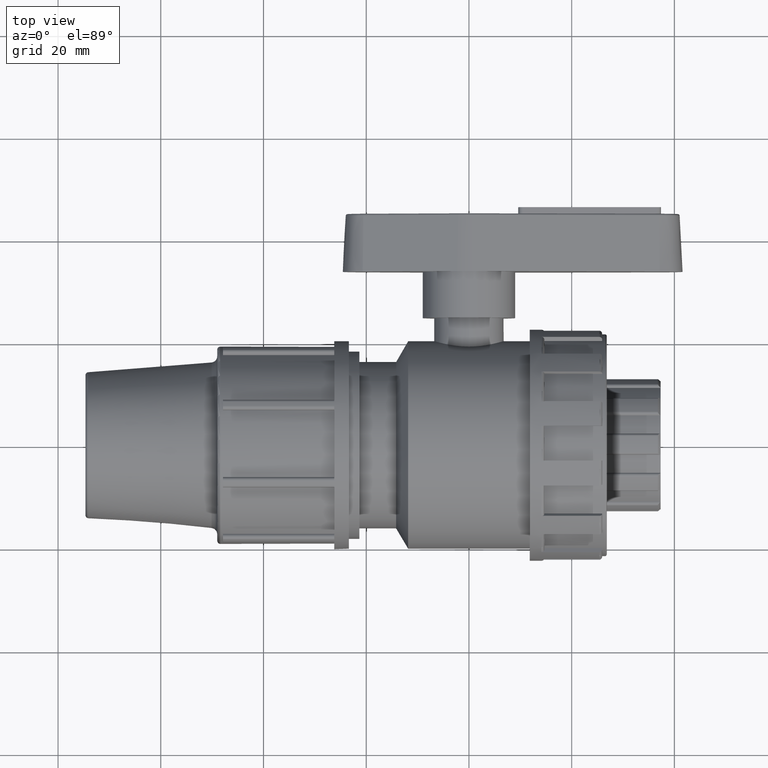
[diagram: clean part render]
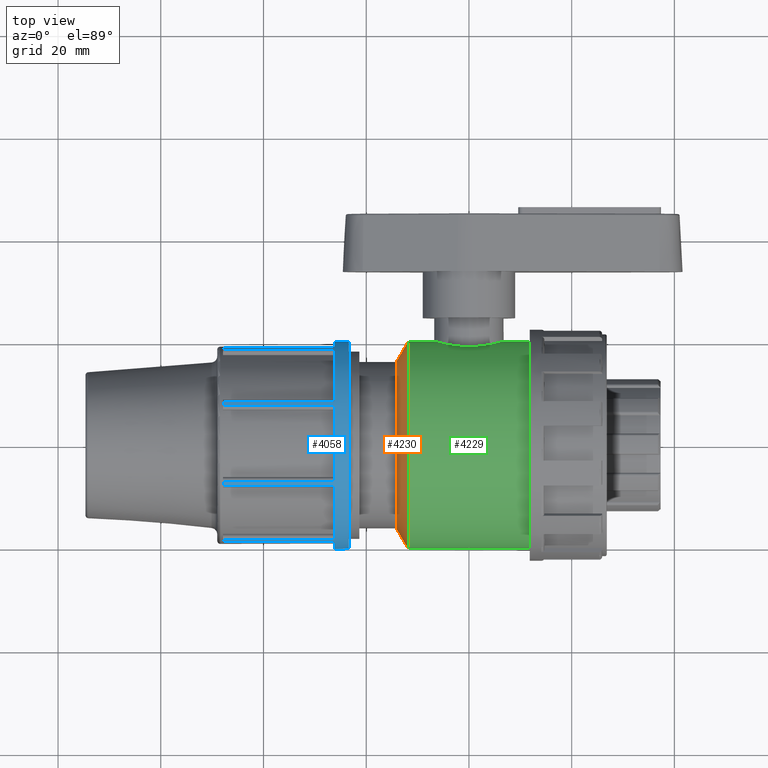
[diagram: same view with three faces highlighted in distinct colors, each labeled with its STEP entity id]
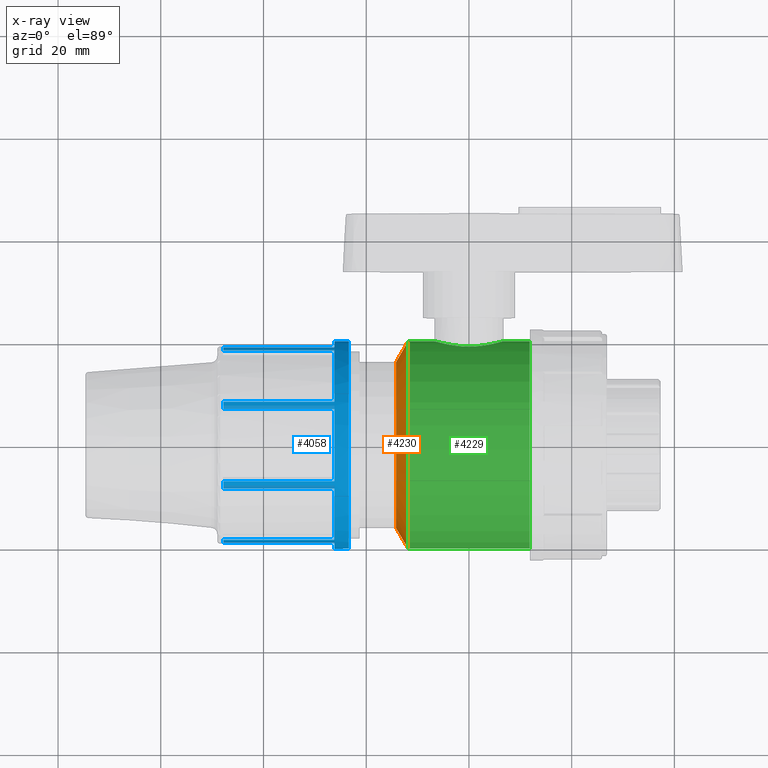
[diagram: x-ray of the same camera — body ghosted, the three highlighted faces saturated]
A machine part, top view with three faces highlighted in distinct colors.
The next image is the same camera in x-ray (body ghosted, the three faces saturated) — at least one of them is partly hidden behind the body in this view.
Their STEP definitions:

[orange] entity #4230 — the highlighted conical surface has half-angle 60 deg.
#31=CONICAL_SURFACE('',#4722,18.225,60.);
#98=FACE_BOUND('',#851,.T.);
#578=FACE_OUTER_BOUND('',#850,.T.);
#850=EDGE_LOOP('',(#3898));
#851=EDGE_LOOP('',(#3899));
#1615=CIRCLE('',#4721,20.25);
#1616=CIRCLE('',#4723,16.2);
#2028=VERTEX_POINT('',#8648);
#2029=VERTEX_POINT('',#8651);
#2655=EDGE_CURVE('',#2028,#2028,#1615,.T.);
#2656=EDGE_CURVE('',#2029,#2029,#1616,.T.);
#3898=ORIENTED_EDGE('',*,*,#2656,.F.);
#3899=ORIENTED_EDGE('',*,*,#2655,.T.);
#4230=ADVANCED_FACE('',(#578,#98),#31,.T.);
#4721=AXIS2_PLACEMENT_3D('',#8649,#5944,#5945);
#4722=AXIS2_PLACEMENT_3D('',#8650,#5946,#5947);
#4723=AXIS2_PLACEMENT_3D('',#8652,#5948,#5949);
#5944=DIRECTION('center_axis',(-1.,-1.09423447351567E-31,0.));
#5945=DIRECTION('ref_axis',(0.,0.,1.));
#5946=DIRECTION('center_axis',(1.,1.09423447351567E-31,0.));
#5947=DIRECTION('ref_axis',(0.,1.,0.));
#5948=DIRECTION('center_axis',(-1.,-1.09423447351567E-31,0.));
#5949=DIRECTION('ref_axis',(0.,0.,1.));
#8648=CARTESIAN_POINT('',(-11.8333333333333,20.25,0.));
#8649=CARTESIAN_POINT('Origin',(-11.8333333333333,-5.37998616145206E-30,
0.));
#8650=CARTESIAN_POINT('Origin',(-13.0024676284423,-5.50791686643983E-30,
0.));
#8651=CARTESIAN_POINT('',(-14.1716019235513,16.2,0.));
#8652=CARTESIAN_POINT('Origin',(-14.1716019235513,-5.6358475714276E-30,
0.));

[blue] entity #4058 — the highlighted cylindrical surface (bore or boss wall) has radius 20.25 mm, axis along (-1, -0, 0).
#75=FACE_BOUND('',#656,.T.);
#406=FACE_OUTER_BOUND('',#655,.T.);
#655=EDGE_LOOP('',(#3001,#3002,#3003,#3004,#3005,#3006,#3007,#3008,#3009,
#3010,#3011,#3012,#3013,#3014,#3015,#3016,#3017,#3018,#3019,#3020,#3021,
#3022,#3023,#3024,#3025,#3026,#3027,#3028,#3029,#3030,#3031,#3032));
#656=EDGE_LOOP('',(#3033));
#870=LINE('',#5988,#1114);
#876=LINE('',#6136,#1120);
#882=LINE('',#6168,#1126);
#886=LINE('',#6271,#1130);
#892=LINE('',#6303,#1136);
#896=LINE('',#6406,#1140);
#902=LINE('',#6438,#1146);
#906=LINE('',#6541,#1150);
#912=LINE('',#6573,#1156);
#916=LINE('',#6676,#1160);
#922=LINE('',#6708,#1166);
#926=LINE('',#6811,#1170);
#932=LINE('',#6843,#1176);
#936=LINE('',#6946,#1180);
#944=LINE('',#7030,#1188);
#945=LINE('',#7033,#1189);
#1114=VECTOR('',#4746,21.6);
#1120=VECTOR('',#4768,21.6);
#1126=VECTOR('',#4786,21.6);
#1130=VECTOR('',#4800,21.6);
#1136=VECTOR('',#4818,21.6);
#1140=VECTOR('',#4832,21.6);
#1146=VECTOR('',#4850,21.6);
#1150=VECTOR('',#4864,21.6000000000001);
#1156=VECTOR('',#4882,21.6);
#1160=VECTOR('',#4896,21.6);
#1166=VECTOR('',#4914,21.6);
#1170=VECTOR('',#4928,21.6);
#1176=VECTOR('',#4946,21.6);
#1180=VECTOR('',#4960,21.6);
#1188=VECTOR('',#5058,21.6);
#1189=VECTOR('',#5061,21.6);
#1401=CIRCLE('',#4321,20.25);
#1403=CIRCLE('',#4324,20.25);
#1405=CIRCLE('',#4327,20.25);
#1407=CIRCLE('',#4330,20.25);
#1409=CIRCLE('',#4333,20.25);
#1411=CIRCLE('',#4336,20.25);
#1413=CIRCLE('',#4339,20.25);
#1418=CIRCLE('',#4347,20.25);
#1419=CIRCLE('',#4349,20.25);
#1420=CIRCLE('',#4351,20.25);
#1421=CIRCLE('',#4353,20.25);
#1422=CIRCLE('',#4355,20.25);
#1423=CIRCLE('',#4357,20.25);
#1424=CIRCLE('',#4359,20.25);
#1425=CIRCLE('',#4361,20.25);
#1426=CIRCLE('',#4363,20.25);
#1427=CIRCLE('',#4364,20.25);
#1625=VERTEX_POINT('',#5985);
#1626=VERTEX_POINT('',#5987);
#1638=VERTEX_POINT('',#6126);
#1640=VERTEX_POINT('',#6134);
#1647=VERTEX_POINT('',#6165);
#1648=VERTEX_POINT('',#6167);
#1654=VERTEX_POINT('',#6261);
#1656=VERTEX_POINT('',#6269);
#1663=VERTEX_POINT('',#6300);
#1664=VERTEX_POINT('',#6302);
#1670=VERTEX_POINT('',#6396);
#1672=VERTEX_POINT('',#6404);
#1679=VERTEX_POINT('',#6435);
#1680=VERTEX_POINT('',#6437);
#1686=VERTEX_POINT('',#6531);
#1688=VERTEX_POINT('',#6539);
#1695=VERTEX_POINT('',#6570);
#1696=VERTEX_POINT('',#6572);
#1702=VERTEX_POINT('',#6666);
#1704=VERTEX_POINT('',#6674);
#1711=VERTEX_POINT('',#6705);
#1712=VERTEX_POINT('',#6707);
#1718=VERTEX_POINT('',#6801);
#1720=VERTEX_POINT('',#6809);
#1727=VERTEX_POINT('',#6840);
#1728=VERTEX_POINT('',#6842);
#1734=VERTEX_POINT('',#6936);
#1736=VERTEX_POINT('',#6944);
#1745=VERTEX_POINT('',#7003);
#1746=VERTEX_POINT('',#7020);
#1747=VERTEX_POINT('',#7029);
#1748=VERTEX_POINT('',#7031);
#1749=VERTEX_POINT('',#7034);
#2038=EDGE_CURVE('',#1625,#1626,#870,.T.);
#2056=EDGE_CURVE('',#1640,#1638,#876,.T.);
#2066=EDGE_CURVE('',#1647,#1648,#882,.T.);
#2078=EDGE_CURVE('',#1656,#1654,#886,.T.);
#2088=EDGE_CURVE('',#1663,#1664,#892,.T.);
#2100=EDGE_CURVE('',#1672,#1670,#896,.T.);
#2110=EDGE_CURVE('',#1679,#1680,#902,.T.);
#2122=EDGE_CURVE('',#1688,#1686,#906,.T.);
#2132=EDGE_CURVE('',#1695,#1696,#912,.T.);
#2144=EDGE_CURVE('',#1704,#1702,#916,.T.);
#2154=EDGE_CURVE('',#1711,#1712,#922,.T.);
#2166=EDGE_CURVE('',#1720,#1718,#926,.T.);
#2176=EDGE_CURVE('',#1727,#1728,#932,.T.);
#2188=EDGE_CURVE('',#1736,#1734,#936,.T.);
#2194=EDGE_CURVE('',#1626,#1640,#1401,.T.);
#2196=EDGE_CURVE('',#1648,#1656,#1403,.T.);
#2198=EDGE_CURVE('',#1664,#1672,#1405,.T.);
#2200=EDGE_CURVE('',#1680,#1688,#1407,.T.);
#2202=EDGE_CURVE('',#1696,#1704,#1409,.T.);
#2204=EDGE_CURVE('',#1712,#1720,#1411,.T.);
#2206=EDGE_CURVE('',#1728,#1736,#1413,.T.);
#2215=EDGE_CURVE('',#1734,#1745,#1418,.T.);
#2217=EDGE_CURVE('',#1718,#1727,#1419,.T.);
#2218=EDGE_CURVE('',#1702,#1711,#1420,.T.);
#2219=EDGE_CURVE('',#1686,#1695,#1421,.T.);
#2220=EDGE_CURVE('',#1670,#1679,#1422,.T.);
#2221=EDGE_CURVE('',#1654,#1663,#1423,.T.);
#2223=EDGE_CURVE('',#1746,#1625,#1424,.T.);
#2224=EDGE_CURVE('',#1638,#1647,#1425,.T.);
#2225=EDGE_CURVE('',#1747,#1746,#944,.T.);
#2226=EDGE_CURVE('',#1748,#1747,#1426,.T.);
#2227=EDGE_CURVE('',#1745,#1748,#945,.T.);
#2228=EDGE_CURVE('',#1749,#1749,#1427,.T.);
#3001=ORIENTED_EDGE('',*,*,#2038,.F.);
#3002=ORIENTED_EDGE('',*,*,#2223,.F.);
#3003=ORIENTED_EDGE('',*,*,#2225,.F.);
#3004=ORIENTED_EDGE('',*,*,#2226,.F.);
#3005=ORIENTED_EDGE('',*,*,#2227,.F.);
#3006=ORIENTED_EDGE('',*,*,#2215,.F.);
#3007=ORIENTED_EDGE('',*,*,#2188,.F.);
#3008=ORIENTED_EDGE('',*,*,#2206,.F.);
#3009=ORIENTED_EDGE('',*,*,#2176,.F.);
#3010=ORIENTED_EDGE('',*,*,#2217,.F.);
#3011=ORIENTED_EDGE('',*,*,#2166,.F.);
#3012=ORIENTED_EDGE('',*,*,#2204,.F.);
#3013=ORIENTED_EDGE('',*,*,#2154,.F.);
#3014=ORIENTED_EDGE('',*,*,#2218,.F.);
#3015=ORIENTED_EDGE('',*,*,#2144,.F.);
#3016=ORIENTED_EDGE('',*,*,#2202,.F.);
#3017=ORIENTED_EDGE('',*,*,#2132,.F.);
#3018=ORIENTED_EDGE('',*,*,#2219,.F.);
#3019=ORIENTED_EDGE('',*,*,#2122,.F.);
#3020=ORIENTED_EDGE('',*,*,#2200,.F.);
#3021=ORIENTED_EDGE('',*,*,#2110,.F.);
#3022=ORIENTED_EDGE('',*,*,#2220,.F.);
#3023=ORIENTED_EDGE('',*,*,#2100,.F.);
#3024=ORIENTED_EDGE('',*,*,#2198,.F.);
#3025=ORIENTED_EDGE('',*,*,#2088,.F.);
#3026=ORIENTED_EDGE('',*,*,#2221,.F.);
#3027=ORIENTED_EDGE('',*,*,#2078,.F.);
#3028=ORIENTED_EDGE('',*,*,#2196,.F.);
#3029=ORIENTED_EDGE('',*,*,#2066,.F.);
#3030=ORIENTED_EDGE('',*,*,#2224,.F.);
#3031=ORIENTED_EDGE('',*,*,#2056,.F.);
#3032=ORIENTED_EDGE('',*,*,#2194,.F.);
#3033=ORIENTED_EDGE('',*,*,#2228,.T.);
#3933=CYLINDRICAL_SURFACE('',#4362,20.25);
#4058=ADVANCED_FACE('',(#406,#75),#3933,.T.);
#4321=AXIS2_PLACEMENT_3D('',#6956,#4971,#4972);
#4324=AXIS2_PLACEMENT_3D('',#6959,#4977,#4978);
#4327=AXIS2_PLACEMENT_3D('',#6962,#4983,#4984);
#4330=AXIS2_PLACEMENT_3D('',#6965,#4989,#4990);
#4333=AXIS2_PLACEMENT_3D('',#6968,#4995,#4996);
#4336=AXIS2_PLACEMENT_3D('',#6971,#5001,#5002);
#4339=AXIS2_PLACEMENT_3D('',#6974,#5007,#5008);
#4347=AXIS2_PLACEMENT_3D('',#7004,#5026,#5027);
#4349=AXIS2_PLACEMENT_3D('',#7010,#5030,#5031);
#4351=AXIS2_PLACEMENT_3D('',#7012,#5034,#5035);
#4353=AXIS2_PLACEMENT_3D('',#7014,#5038,#5039);
#4355=AXIS2_PLACEMENT_3D('',#7016,#5042,#5043);
#4357=AXIS2_PLACEMENT_3D('',#7018,#5046,#5047);
#4359=AXIS2_PLACEMENT_3D('',#7025,#5050,#5051);
#4361=AXIS2_PLACEMENT_3D('',#7027,#5054,#5055);
#4362=AXIS2_PLACEMENT_3D('',#7028,#5056,#5057);
#4363=AXIS2_PLACEMENT_3D('',#7032,#5059,#5060);
#4364=AXIS2_PLACEMENT_3D('',#7035,#5062,#5063);
#4746=DIRECTION('',(1.,1.09423447351567E-31,0.));
#4768=DIRECTION('',(-1.,-1.09423447351567E-31,0.));
#4786=DIRECTION('',(1.,1.09423447351567E-31,0.));
#4800=DIRECTION('',(-1.,-1.09423447351567E-31,0.));
#4818=DIRECTION('',(1.,1.09423447351567E-31,0.));
#4832=DIRECTION('',(-1.,-1.09423447351567E-31,0.));
#4850=DIRECTION('',(1.,1.09423447351567E-31,0.));
#4864=DIRECTION('',(-1.,-1.09423447351567E-31,0.));
#4882=DIRECTION('',(1.,1.09423447351567E-31,0.));
#4896=DIRECTION('',(-1.,-1.09423447351567E-31,0.));
#4914=DIRECTION('',(1.,1.09423447351567E-31,0.));
#4928=DIRECTION('',(-1.,-1.09423447351567E-31,0.));
#4946=DIRECTION('',(1.,1.09423447351567E-31,0.));
#4960=DIRECTION('',(-1.,-1.09423447351567E-31,0.));
#4971=DIRECTION('center_axis',(-1.,-7.73740616431025E-32,7.73740616431025E-32));
#4972=DIRECTION('ref_axis',(0.,1.,0.));
#4977=DIRECTION('center_axis',(-1.,2.18952885050753E-47,1.09423447351567E-31));
#4978=DIRECTION('ref_axis',(0.,1.,0.));
#4983=DIRECTION('center_axis',(-1.,7.73740616431025E-32,7.73740616431025E-32));
#4984=DIRECTION('ref_axis',(0.,1.,0.));
#4989=DIRECTION('center_axis',(-1.,1.09423447351567E-31,-2.18952885050753E-47));
#4990=DIRECTION('ref_axis',(0.,1.,0.));
#4995=DIRECTION('center_axis',(-1.,7.73740616431025E-32,-7.73740616431025E-32));
#4996=DIRECTION('ref_axis',(0.,1.,0.));
#5001=DIRECTION('center_axis',(-1.,0.,-1.09423447351567E-31));
#5002=DIRECTION('ref_axis',(0.,1.,0.));
#5007=DIRECTION('center_axis',(-1.,-7.73740616431025E-32,-7.73740616431025E-32));
#5008=DIRECTION('ref_axis',(0.,1.,0.));
#5026=DIRECTION('center_axis',(-1.,-1.09423447351567E-31,0.));
#5027=DIRECTION('ref_axis',(0.,-1.,-1.83697019872103E-16));
#5030=DIRECTION('center_axis',(-1.,-1.09423447351567E-31,0.));
#5031=DIRECTION('ref_axis',(0.,-1.,-1.83697019872103E-16));
#5034=DIRECTION('center_axis',(-1.,-1.09423447351567E-31,0.));
#5035=DIRECTION('ref_axis',(0.,-1.,-1.83697019872103E-16));
#5038=DIRECTION('center_axis',(-1.,-1.09423447351567E-31,0.));
#5039=DIRECTION('ref_axis',(0.,-1.,-1.83697019872103E-16));
#5042=DIRECTION('center_axis',(-1.,-1.09423447351567E-31,0.));
#5043=DIRECTION('ref_axis',(0.,-1.,-1.83697019872103E-16));
#5046=DIRECTION('center_axis',(-1.,-1.09423447351567E-31,0.));
#5047=DIRECTION('ref_axis',(0.,-1.,-1.83697019872103E-16));
#5050=DIRECTION('center_axis',(-1.,-1.09423447351567E-31,0.));
#5051=DIRECTION('ref_axis',(0.,-1.,-1.83697019872103E-16));
#5054=DIRECTION('center_axis',(-1.,-1.09423447351567E-31,0.));
#5055=DIRECTION('ref_axis',(0.,-1.,-1.83697019872103E-16));
#5056=DIRECTION('center_axis',(-1.,-1.09423447351567E-31,0.));
#5057=DIRECTION('ref_axis',(0.,1.,0.));
#5058=DIRECTION('',(-1.,-1.09423447351567E-31,0.));
#5059=DIRECTION('center_axis',(-1.,-1.09423447351567E-31,-3.28789518674083E-49));
#5060=DIRECTION('ref_axis',(0.,1.,0.));
#5061=DIRECTION('',(1.,1.09423447351567E-31,0.));
#5062=DIRECTION('center_axis',(-1.,-1.09423447351567E-31,0.));
#5063=DIRECTION('ref_axis',(0.,0.,1.));
#5985=CARTESIAN_POINT('',(-47.8166666666667,18.53643441494,-8.15249036679141));
#5987=CARTESIAN_POINT('',(-26.2166666666667,18.53643441494,-8.15249036679141));
#5988=CARTESIAN_POINT('',(-36.1916666666667,18.53643441494,-8.15249036679141));
#6126=CARTESIAN_POINT('',(-47.8166666666667,8.1524903667898,-18.5364344149407));
#6134=CARTESIAN_POINT('',(-26.2166666666667,8.15249036678981,-18.5364344149407));
#6136=CARTESIAN_POINT('',(-36.1916666666667,8.15249036678981,-18.5364344149407));
#6165=CARTESIAN_POINT('',(-47.8166666666667,7.34255725190758,-18.87191969574));
#6167=CARTESIAN_POINT('',(-26.2166666666667,7.34255725190758,-18.87191969574));
#6168=CARTESIAN_POINT('',(-36.1916666666667,7.34255725190758,-18.87191969574));
#6261=CARTESIAN_POINT('',(-47.8166666666667,-7.34255725190922,-18.8719196957394));
#6269=CARTESIAN_POINT('',(-26.2166666666667,-7.34255725190921,-18.8719196957394));
#6271=CARTESIAN_POINT('',(-36.1916666666667,-7.34255725190921,-18.8719196957394));
#6300=CARTESIAN_POINT('',(-47.8166666666667,-8.15249036679141,-18.53643441494));
#6302=CARTESIAN_POINT('',(-26.2166666666667,-8.15249036679141,-18.53643441494));
#6303=CARTESIAN_POINT('',(-36.1916666666667,-8.15249036679141,-18.53643441494));
#6396=CARTESIAN_POINT('',(-47.8166666666667,-18.5364344149407,-8.1524903667898));
#6404=CARTESIAN_POINT('',(-26.2166666666667,-18.5364344149407,-8.15249036678981));
#6406=CARTESIAN_POINT('',(-36.1916666666667,-18.5364344149407,-8.15249036678981));
#6435=CARTESIAN_POINT('',(-47.8166666666667,-18.87191969574,-7.34255725190758));
#6437=CARTESIAN_POINT('',(-26.2166666666667,-18.87191969574,-7.34255725190758));
#6438=CARTESIAN_POINT('',(-36.1916666666667,-18.87191969574,-7.34255725190758));
#6531=CARTESIAN_POINT('',(-47.8166666666667,-18.8719196957394,7.34255725190921));
#6539=CARTESIAN_POINT('',(-26.2166666666667,-18.8719196957394,7.34255725190922));
#6541=CARTESIAN_POINT('',(-36.1916666666667,-18.8719196957394,7.34255725190922));
#6570=CARTESIAN_POINT('',(-47.8166666666667,-18.53643441494,8.1524903667914));
#6572=CARTESIAN_POINT('',(-26.2166666666667,-18.53643441494,8.1524903667914));
#6573=CARTESIAN_POINT('',(-36.1916666666667,-18.53643441494,8.1524903667914));
#6666=CARTESIAN_POINT('',(-47.8166666666667,-8.1524903667898,18.5364344149407));
#6674=CARTESIAN_POINT('',(-26.2166666666667,-8.1524903667898,18.5364344149407));
#6676=CARTESIAN_POINT('',(-36.1916666666667,-8.1524903667898,18.5364344149407));
#6705=CARTESIAN_POINT('',(-47.8166666666667,-7.34255725190758,18.87191969574));
#6707=CARTESIAN_POINT('',(-26.2166666666667,-7.34255725190758,18.87191969574));
#6708=CARTESIAN_POINT('',(-36.1916666666667,-7.34255725190758,18.87191969574));
#6801=CARTESIAN_POINT('',(-47.8166666666667,7.34255725190921,18.8719196957394));
#6809=CARTESIAN_POINT('',(-26.2166666666667,7.34255725190921,18.8719196957394));
#6811=CARTESIAN_POINT('',(-36.1916666666667,7.34255725190921,18.8719196957394));
#6840=CARTESIAN_POINT('',(-47.8166666666667,8.15249036679141,18.53643441494));
#6842=CARTESIAN_POINT('',(-26.2166666666667,8.15249036679141,18.53643441494));
#6843=CARTESIAN_POINT('',(-36.1916666666667,8.15249036679141,18.53643441494));
#6936=CARTESIAN_POINT('',(-47.8166666666667,18.5364344149407,8.1524903667898));
#6944=CARTESIAN_POINT('',(-26.2166666666667,18.5364344149407,8.15249036678981));
#6946=CARTESIAN_POINT('',(-36.1916666666667,18.5364344149407,8.15249036678981));
#6956=CARTESIAN_POINT('Origin',(-26.2166666666667,-6.95386007919211E-30,
0.));
#6959=CARTESIAN_POINT('Origin',(-26.2166666666667,-6.95386007919211E-30,
0.));
#6962=CARTESIAN_POINT('Origin',(-26.2166666666667,-6.95386007919211E-30,
0.));
#6965=CARTESIAN_POINT('Origin',(-26.2166666666667,-6.95386007919211E-30,
0.));
#6968=CARTESIAN_POINT('Origin',(-26.2166666666667,-6.95386007919211E-30,
0.));
#6971=CARTESIAN_POINT('Origin',(-26.2166666666667,-6.95386007919211E-30,
0.));
#6974=CARTESIAN_POINT('Origin',(-26.2166666666667,-6.95386007919211E-30,
0.));
#7003=CARTESIAN_POINT('',(-47.8166666666667,18.87191969574,7.34255725190758));
#7004=CARTESIAN_POINT('Origin',(-47.8166666666667,-9.31740654198596E-30,
0.));
#7010=CARTESIAN_POINT('Origin',(-47.8166666666667,-9.31740654198596E-30,
0.));
#7012=CARTESIAN_POINT('Origin',(-47.8166666666667,-9.31740654198596E-30,
0.));
#7014=CARTESIAN_POINT('Origin',(-47.8166666666667,-9.31740654198596E-30,
0.));
#7016=CARTESIAN_POINT('Origin',(-47.8166666666667,-9.31740654198596E-30,
0.));
#7018=CARTESIAN_POINT('Origin',(-47.8166666666667,-9.31740654198596E-30,
0.));
#7020=CARTESIAN_POINT('',(-47.8166666666667,18.8719196957394,-7.34255725190921));
#7025=CARTESIAN_POINT('Origin',(-47.8166666666667,-9.31740654198596E-30,
0.));
#7027=CARTESIAN_POINT('Origin',(-47.8166666666667,-9.31740654198596E-30,
0.));
#7028=CARTESIAN_POINT('Origin',(-36.1916666666667,-8.04535896652399E-30,
0.));
#7029=CARTESIAN_POINT('',(-26.2166666666667,18.8719196957394,-7.34255725190921));
#7030=CARTESIAN_POINT('',(-36.1916666666667,18.8719196957394,-7.34255725190921));
#7031=CARTESIAN_POINT('',(-26.2166666666667,18.87191969574,7.34255725190759));
#7032=CARTESIAN_POINT('Origin',(-26.2166666666667,-6.95386007919211E-30,
0.));
#7033=CARTESIAN_POINT('',(-36.1916666666667,18.87191969574,7.34255725190759));
#7034=CARTESIAN_POINT('',(-23.3666666666667,20.25,0.));
#7035=CARTESIAN_POINT('Origin',(-23.3666666666667,-6.64200325424014E-30,
0.));

[green] entity #4229 — the highlighted cylindrical surface (bore or boss wall) has radius 20.25 mm, axis along (-1, -0, 0).
#96=FACE_BOUND('',#848,.T.);
#97=FACE_BOUND('',#849,.T.);
#275=B_SPLINE_CURVE_WITH_KNOTS('',3,(#7724,#7725,#7726,#7727,#7728,#7729,
#7730,#7731,#7732,#7733,#7734,#7735,#7736,#7737,#7738,#7739,#7740,#7741,
#7742,#7743,#7744,#7745,#7746,#7747,#7748,#7749,#7750,#7751,#7752,#7753,
#7754,#7755,#7756,#7757),.UNSPECIFIED.,.T.,.F.,(4,2,2,2,2,2,2,2,2,2,2,2,
2,2,2,2,4),(0.,0.256458272325988,0.512916544651976,0.769255871433363,1.02559519821475,
1.28193452499614,1.53827385177752,1.79473212410351,2.0511903964295,2.30764866875549,
2.56410694108148,2.82044626786286,3.07678559464425,3.33312492142564,3.58946424820702,
3.84592252053301,4.102380792859),.UNSPECIFIED.);
#577=FACE_OUTER_BOUND('',#847,.T.);
#847=EDGE_LOOP('',(#3895));
#848=EDGE_LOOP('',(#3896));
#849=EDGE_LOOP('',(#3897));
#1614=CIRCLE('',#4719,20.25);
#1615=CIRCLE('',#4721,20.25);
#1875=VERTEX_POINT('',#7723);
#2027=VERTEX_POINT('',#8645);
#2028=VERTEX_POINT('',#8648);
#2430=EDGE_CURVE('',#1875,#1875,#275,.T.);
#2654=EDGE_CURVE('',#2027,#2027,#1614,.T.);
#2655=EDGE_CURVE('',#2028,#2028,#1615,.T.);
#3895=ORIENTED_EDGE('',*,*,#2655,.F.);
#3896=ORIENTED_EDGE('',*,*,#2430,.T.);
#3897=ORIENTED_EDGE('',*,*,#2654,.T.);
#3987=CYLINDRICAL_SURFACE('',#4720,20.25);
#4229=ADVANCED_FACE('',(#577,#96,#97),#3987,.T.);
#4719=AXIS2_PLACEMENT_3D('',#8646,#5940,#5941);
#4720=AXIS2_PLACEMENT_3D('',#8647,#5942,#5943);
#4721=AXIS2_PLACEMENT_3D('',#8649,#5944,#5945);
#5940=DIRECTION('center_axis',(-1.,-1.09423447351567E-31,0.));
#5941=DIRECTION('ref_axis',(0.,0.,1.));
#5942=DIRECTION('center_axis',(-1.,-1.09423447351567E-31,0.));
#5943=DIRECTION('ref_axis',(0.,1.,0.));
#5944=DIRECTION('center_axis',(-1.,-1.09423447351567E-31,0.));
#5945=DIRECTION('ref_axis',(0.,0.,1.));
#7723=CARTESIAN_POINT('',(0.,19.0918830920368,6.75));
#7724=CARTESIAN_POINT('Ctrl Pts',(0.,19.0918830920368,6.75));
#7725=CARTESIAN_POINT('Ctrl Pts',(-0.854860907753294,19.0918830920368,6.75));
#7726=CARTESIAN_POINT('Ctrl Pts',(-1.76176332087878,19.155330784381,6.57780979006448));
#7727=CARTESIAN_POINT('Ctrl Pts',(-3.42260896471446,19.3787802861457,5.88703212647787));
#7728=CARTESIAN_POINT('Ctrl Pts',(-4.17719080602039,19.5349647784251,5.368750739998));
#7729=CARTESIAN_POINT('Ctrl Pts',(-5.36847441678957,19.8238934935586,4.17746712922881));
#7730=CARTESIAN_POINT('Ctrl Pts',(-5.88696853128696,19.976199448298,3.42277523071248));
#7731=CARTESIAN_POINT('Ctrl Pts',(-6.57790484042057,20.1906160611833,1.76152142624079));
#7732=CARTESIAN_POINT('Ctrl Pts',(-6.75,20.25,0.854464422604623));
#7733=CARTESIAN_POINT('Ctrl Pts',(-6.75,20.25,-0.854464422604621));
#7734=CARTESIAN_POINT('Ctrl Pts',(-6.57790484042057,20.1906160611833,-1.76152142624079));
#7735=CARTESIAN_POINT('Ctrl Pts',(-5.88696853128696,19.976199448298,-3.42277523071248));
#7736=CARTESIAN_POINT('Ctrl Pts',(-5.36847441678957,19.8238934935586,-4.17746712922881));
#7737=CARTESIAN_POINT('Ctrl Pts',(-4.17719080602039,19.5349647784251,-5.368750739998));
#7738=CARTESIAN_POINT('Ctrl Pts',(-3.42260896471446,19.3787802861457,-5.88703212647787));
#7739=CARTESIAN_POINT('Ctrl Pts',(-1.76176332087878,19.155330784381,-6.57780979006448));
#7740=CARTESIAN_POINT('Ctrl Pts',(-0.854860907753294,19.0918830920368,-6.75));
#7741=CARTESIAN_POINT('Ctrl Pts',(0.854860907753294,19.0918830920368,-6.75));
#7742=CARTESIAN_POINT('Ctrl Pts',(1.76176332087878,19.155330784381,-6.57780979006448));
#7743=CARTESIAN_POINT('Ctrl Pts',(3.42260896471446,19.3787802861457,-5.88703212647787));
#7744=CARTESIAN_POINT('Ctrl Pts',(4.17719080602039,19.5349647784251,-5.368750739998));
#7745=CARTESIAN_POINT('Ctrl Pts',(5.36847441678957,19.8238934935586,-4.17746712922882));
#7746=CARTESIAN_POINT('Ctrl Pts',(5.88696853128696,19.976199448298,-3.42277523071248));
#7747=CARTESIAN_POINT('Ctrl Pts',(6.57790484042057,20.1906160611833,-1.76152142624079));
#7748=CARTESIAN_POINT('Ctrl Pts',(6.75,20.25,-0.854464422604624));
#7749=CARTESIAN_POINT('Ctrl Pts',(6.75,20.25,0.85446442260462));
#7750=CARTESIAN_POINT('Ctrl Pts',(6.57790484042057,20.1906160611833,1.76152142624078));
#7751=CARTESIAN_POINT('Ctrl Pts',(5.88696853128696,19.976199448298,3.42277523071248));
#7752=CARTESIAN_POINT('Ctrl Pts',(5.36847441678958,19.8238934935586,4.17746712922881));
#7753=CARTESIAN_POINT('Ctrl Pts',(4.17719080602039,19.5349647784251,5.368750739998));
#7754=CARTESIAN_POINT('Ctrl Pts',(3.42260896471446,19.3787802861457,5.88703212647787));
#7755=CARTESIAN_POINT('Ctrl Pts',(1.76176332087878,19.155330784381,6.57780979006448));
#7756=CARTESIAN_POINT('Ctrl Pts',(0.854860907753294,19.0918830920368,6.75));
#7757=CARTESIAN_POINT('Ctrl Pts',(2.77555756156289E-16,19.0918830920368,
6.75));
#8645=CARTESIAN_POINT('',(11.8333333333333,20.25,0.));
#8646=CARTESIAN_POINT('Origin',(11.8333333333333,-2.79029790746497E-30,
0.));
#8647=CARTESIAN_POINT('Origin',(0.,-4.08514203445851E-30,0.));
#8648=CARTESIAN_POINT('',(-11.8333333333333,20.25,0.));
#8649=CARTESIAN_POINT('Origin',(-11.8333333333333,-5.37998616145206E-30,
0.));